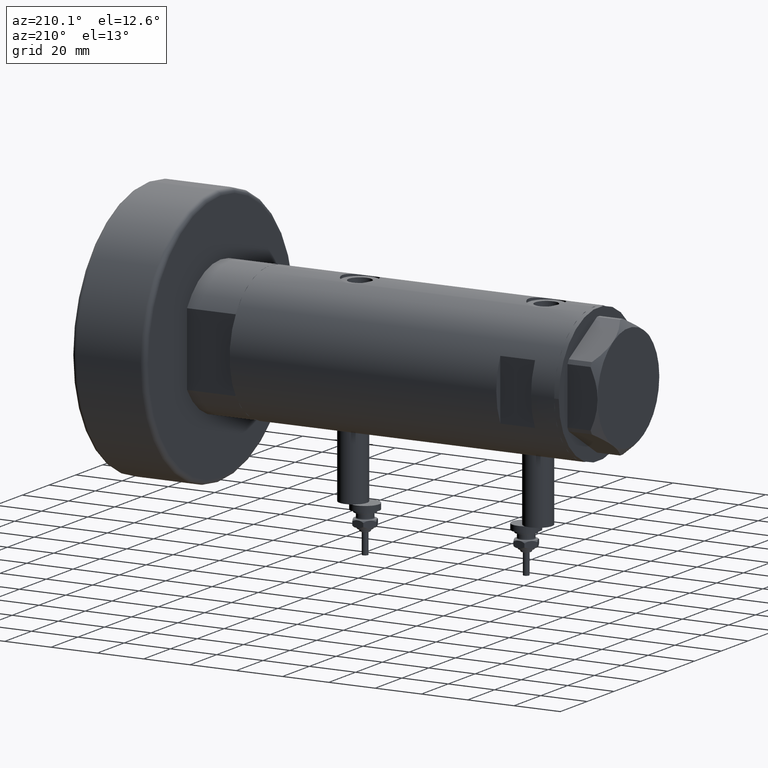
[diagram: clean part render]
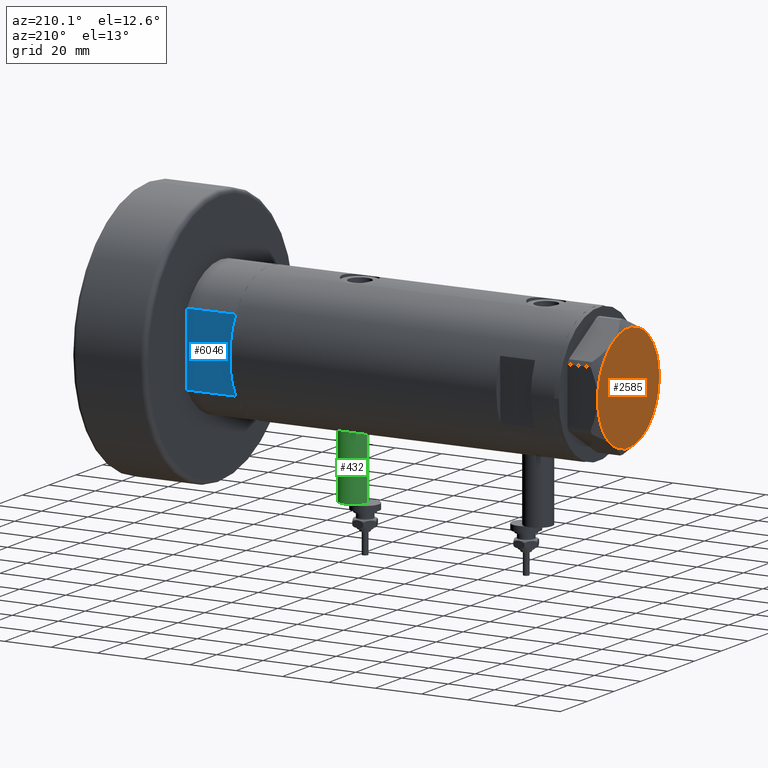
[diagram: same view with three faces highlighted in distinct colors, each labeled with its STEP entity id]
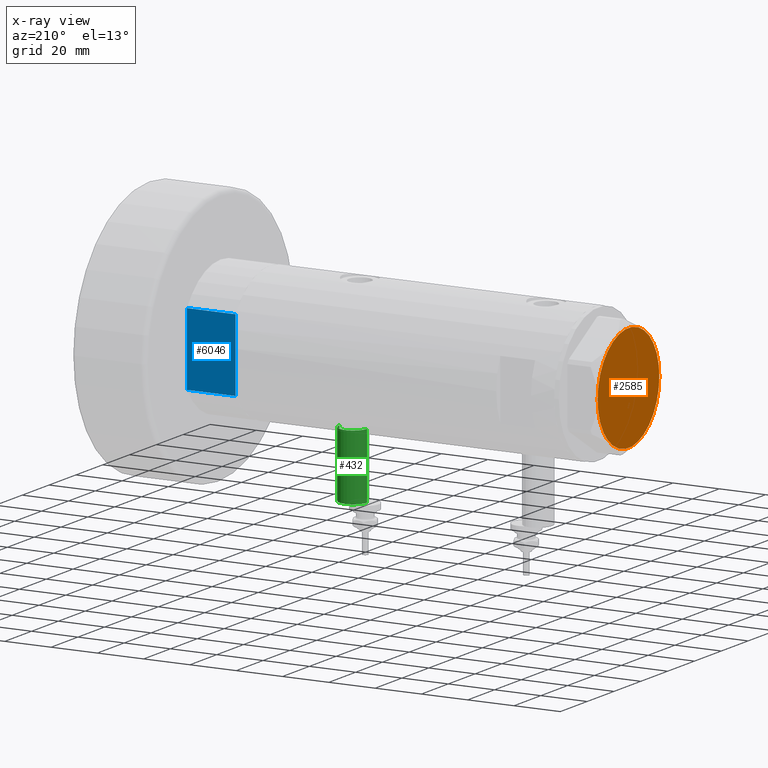
[diagram: x-ray of the same camera — body ghosted, the three highlighted faces saturated]
A machine part, auxiliary view with three faces highlighted in distinct colors.
The next image is the same camera in x-ray (body ghosted, the three faces saturated) — at least one of them is partly hidden behind the body in this view.
Their STEP definitions:

[orange] entity #2585 — the highlighted planar face has unit normal (-1, -0, 0).
#3 = DIRECTION ( 'NONE',  ( 0.000000000000000000, 0.000000000000000000, 1.000000000000000000 ) ) ;
#18 = AXIS2_PLACEMENT_3D ( 'NONE', #5641, #2256, #279 ) ;
#35 = CARTESIAN_POINT ( 'NONE',  ( 0.000000000000000000, 0.000000000000000000, 13.00000000000000000 ) ) ;
#48 = EDGE_CURVE ( 'NONE', #6001, #1273, #4721, .T. ) ;
#147 = AXIS2_PLACEMENT_3D ( 'NONE', #5677, #2261, #2772 ) ;
#279 = DIRECTION ( 'NONE',  ( 1.000000000000000000, 0.000000000000000000, 0.000000000000000000 ) ) ;
#515 = DIRECTION ( 'NONE',  ( 1.000000000000000000, 0.000000000000000000, 0.000000000000000000 ) ) ;
#547 = ORIENTED_EDGE ( 'NONE', *, *, #1640, .T. ) ;
#578 = AXIS2_PLACEMENT_3D ( 'NONE', #2924, #3, #4809 ) ;
#669 = DIRECTION ( 'NONE',  ( 1.000000000000000000, 0.000000000000000000, 0.000000000000000000 ) ) ;
#792 = CIRCLE ( 'NONE', #578, 23.00000000000004619 ) ;
#887 = CARTESIAN_POINT ( 'NONE',  ( 0.000000000000000000, 0.000000000000000000, 13.00000000000000000 ) ) ;
#1061 = CARTESIAN_POINT ( 'NONE',  ( 11.49999999999990408, 19.91858428704219364, 13.00000000000000000 ) ) ;
#1187 = AXIS2_PLACEMENT_3D ( 'NONE', #4033, #2589, #669 ) ;
#1273 = VERTEX_POINT ( 'NONE', #6051 ) ;
#1278 = CIRCLE ( 'NONE', #3926, 23.00000000000004619 ) ;
#1513 = VERTEX_POINT ( 'NONE', #3028 ) ;
#1555 = DIRECTION ( 'NONE',  ( 1.000000000000000000, 0.000000000000000000, -0.000000000000000000 ) ) ;
#1561 = VERTEX_POINT ( 'NONE', #1061 ) ;
#1640 = EDGE_CURVE ( 'NONE', #1273, #5021, #1278, .T. ) ;
#1706 = CIRCLE ( 'NONE', #6254, 23.00000000000004619 ) ;
#1718 = CARTESIAN_POINT ( 'NONE',  ( -11.50000000000004441, 19.91858428704211548, 13.00000000000000000 ) ) ;
#1890 = EDGE_CURVE ( 'NONE', #1513, #6001, #5950, .T. ) ;
#1960 = PLANE ( 'NONE',  #6242 ) ;
#2051 = CARTESIAN_POINT ( 'NONE',  ( 0.000000000000000000, 0.000000000000000000, 13.00000000000000000 ) ) ;
#2256 = DIRECTION ( 'NONE',  ( 0.000000000000000000, 0.000000000000000000, 1.000000000000000000 ) ) ;
#2261 = DIRECTION ( 'NONE',  ( 0.000000000000000000, 0.000000000000000000, 1.000000000000000000 ) ) ;
#2585 = ADVANCED_FACE ( 'NONE', ( #5871 ), #1960, .T. ) ;
#2589 = DIRECTION ( 'NONE',  ( 0.000000000000000000, 0.000000000000000000, 1.000000000000000000 ) ) ;
#2642 = EDGE_LOOP ( 'NONE', ( #547, #5862, #5607, #4249, #4905, #5364 ) ) ;
#2772 = DIRECTION ( 'NONE',  ( 1.000000000000000000, 0.000000000000000000, 0.000000000000000000 ) ) ;
#2924 = CARTESIAN_POINT ( 'NONE',  ( 0.000000000000000000, 0.000000000000000000, 13.00000000000000000 ) ) ;
#2948 = DIRECTION ( 'NONE',  ( 0.000000000000000000, 0.000000000000000000, 1.000000000000000000 ) ) ;
#3028 = CARTESIAN_POINT ( 'NONE',  ( -23.00000000000004619, -8.112498833180673323E-14, 13.00000000000000000 ) ) ;
#3039 = DIRECTION ( 'NONE',  ( 0.000000000000000000, 0.000000000000000000, 1.000000000000000000 ) ) ;
#3060 = EDGE_CURVE ( 'NONE', #3370, #1513, #5658, .T. ) ;
#3339 = DIRECTION ( 'NONE',  ( 0.000000000000000000, 0.000000000000000000, 1.000000000000000000 ) ) ;
#3370 = VERTEX_POINT ( 'NONE', #1718 ) ;
#3580 = CARTESIAN_POINT ( 'NONE',  ( -11.49999999999990585, -19.91858428704219364, 13.00000000000000000 ) ) ;
#3782 = DIRECTION ( 'NONE',  ( 1.000000000000000000, 0.000000000000000000, 0.000000000000000000 ) ) ;
#3926 = AXIS2_PLACEMENT_3D ( 'NONE', #887, #3339, #3782 ) ;
#4033 = CARTESIAN_POINT ( 'NONE',  ( 0.000000000000000000, 0.000000000000000000, 13.00000000000000000 ) ) ;
#4249 = ORIENTED_EDGE ( 'NONE', *, *, #3060, .T. ) ;
#4622 = EDGE_CURVE ( 'NONE', #1561, #3370, #1706, .T. ) ;
#4721 = CIRCLE ( 'NONE', #18, 23.00000000000004619 ) ;
#4809 = DIRECTION ( 'NONE',  ( 1.000000000000000000, 0.000000000000000000, 0.000000000000000000 ) ) ;
#4905 = ORIENTED_EDGE ( 'NONE', *, *, #1890, .T. ) ;
#5021 = VERTEX_POINT ( 'NONE', #5727 ) ;
#5364 = ORIENTED_EDGE ( 'NONE', *, *, #48, .T. ) ;
#5607 = ORIENTED_EDGE ( 'NONE', *, *, #4622, .T. ) ;
#5641 = CARTESIAN_POINT ( 'NONE',  ( 0.000000000000000000, 0.000000000000000000, 13.00000000000000000 ) ) ;
#5658 = CIRCLE ( 'NONE', #1187, 23.00000000000004619 ) ;
#5677 = CARTESIAN_POINT ( 'NONE',  ( 0.000000000000000000, 0.000000000000000000, 13.00000000000000000 ) ) ;
#5727 = CARTESIAN_POINT ( 'NONE',  ( 22.99999999999995026, 2.373657066004705010E-13, 13.00000000000000000 ) ) ;
#5862 = ORIENTED_EDGE ( 'NONE', *, *, #6045, .T. ) ;
#5871 = FACE_OUTER_BOUND ( 'NONE', #2642, .T. ) ;
#5950 = CIRCLE ( 'NONE', #147, 23.00000000000004619 ) ;
#6001 = VERTEX_POINT ( 'NONE', #3580 ) ;
#6045 = EDGE_CURVE ( 'NONE', #5021, #1561, #792, .T. ) ;
#6051 = CARTESIAN_POINT ( 'NONE',  ( 11.50000000000018296, -19.91858428704203732, 13.00000000000000000 ) ) ;
#6242 = AXIS2_PLACEMENT_3D ( 'NONE', #2051, #3039, #1555 ) ;
#6254 = AXIS2_PLACEMENT_3D ( 'NONE', #35, #2948, #515 ) ;

[blue] entity #6046 — the highlighted planar face has unit normal (0, -1, -0).
#250 = DIRECTION ( 'NONE',  ( 1.000000000000000000, 0.000000000000000000, 0.000000000000000000 ) ) ;
#604 = EDGE_CURVE ( 'NONE', #3961, #4569, #2138, .T. ) ;
#707 = VERTEX_POINT ( 'NONE', #6019 ) ;
#784 = CARTESIAN_POINT ( 'NONE',  ( 15.66045976336583401, 25.00000000000000000, 0.000000000000000000 ) ) ;
#843 = CARTESIAN_POINT ( 'NONE',  ( -15.66045976336583401, 25.00000000000000000, 0.000000000000000000 ) ) ;
#943 = DIRECTION ( 'NONE',  ( -0.000000000000000000, -0.000000000000000000, 1.000000000000000000 ) ) ;
#1147 = EDGE_CURVE ( 'NONE', #5835, #2940, #6109, .T. ) ;
#1151 = DIRECTION ( 'NONE',  ( 1.000000000000000000, 0.000000000000000000, 0.000000000000000000 ) ) ;
#1157 = CARTESIAN_POINT ( 'NONE',  ( -15.66045976336583401, 25.00000000000000000, 0.000000000000000000 ) ) ;
#1191 = EDGE_CURVE ( 'NONE', #4569, #707, #1492, .T. ) ;
#1217 = CARTESIAN_POINT ( 'NONE',  ( -15.66045976336583401, 25.00000000000000000, 0.000000000000000000 ) ) ;
#1433 = FACE_OUTER_BOUND ( 'NONE', #2156, .T. ) ;
#1492 = LINE ( 'NONE', #1157, #2993 ) ;
#1525 = ORIENTED_EDGE ( 'NONE', *, *, #604, .F. ) ;
#1668 = DIRECTION ( 'NONE',  ( 1.000000000000000000, 0.000000000000000000, 0.000000000000000000 ) ) ;
#1736 = LINE ( 'NONE', #1217, #4442 ) ;
#1789 = VECTOR ( 'NONE', #1151, 1000.000000000000000 ) ;
#2138 = LINE ( 'NONE', #3599, #3596 ) ;
#2156 = EDGE_LOOP ( 'NONE', ( #5426, #5600, #4805, #1525, #5981, #2951 ) ) ;
#2218 = LINE ( 'NONE', #784, #4557 ) ;
#2423 = DIRECTION ( 'NONE',  ( 1.000000000000000000, 0.000000000000000000, 0.000000000000000000 ) ) ;
#2668 = CARTESIAN_POINT ( 'NONE',  ( 7.141428428542853091, 25.00000000000000000, 0.000000000000000000 ) ) ;
#2940 = VERTEX_POINT ( 'NONE', #3174 ) ;
#2951 = ORIENTED_EDGE ( 'NONE', *, *, #4358, .T. ) ;
#2993 = VECTOR ( 'NONE', #2423, 1000.000000000000000 ) ;
#3174 = CARTESIAN_POINT ( 'NONE',  ( 15.66045976336583045, 24.99999999999999645, 20.99999999999999645 ) ) ;
#3185 = CARTESIAN_POINT ( 'NONE',  ( -15.66045976336583401, 25.00000000000000000, 21.00000000000000000 ) ) ;
#3344 = AXIS2_PLACEMENT_3D ( 'NONE', #3397, #3817, #3372 ) ;
#3372 = DIRECTION ( 'NONE',  ( 0.000000000000000000, -0.000000000000000000, -1.000000000000000000 ) ) ;
#3397 = CARTESIAN_POINT ( 'NONE',  ( -15.66045976336583401, 25.00000000000000000, 0.000000000000000000 ) ) ;
#3473 = EDGE_CURVE ( 'NONE', #4519, #3961, #5985, .T. ) ;
#3596 = VECTOR ( 'NONE', #1668, 1000.000000000000000 ) ;
#3599 = CARTESIAN_POINT ( 'NONE',  ( -15.66045976336583401, 25.00000000000000000, 0.000000000000000000 ) ) ;
#3817 = DIRECTION ( 'NONE',  ( 0.000000000000000000, -1.000000000000000000, 0.000000000000000000 ) ) ;
#3913 = PLANE ( 'NONE',  #3344 ) ;
#3961 = VERTEX_POINT ( 'NONE', #5826 ) ;
#4183 = DIRECTION ( 'NONE',  ( -0.000000000000000000, -0.000000000000000000, 1.000000000000000000 ) ) ;
#4358 = EDGE_CURVE ( 'NONE', #4519, #5835, #1736, .T. ) ;
#4442 = VECTOR ( 'NONE', #4183, 1000.000000000000000 ) ;
#4519 = VERTEX_POINT ( 'NONE', #843 ) ;
#4557 = VECTOR ( 'NONE', #943, 1000.000000000000000 ) ;
#4569 = VERTEX_POINT ( 'NONE', #2668 ) ;
#4586 = EDGE_CURVE ( 'NONE', #707, #2940, #2218, .T. ) ;
#4805 = ORIENTED_EDGE ( 'NONE', *, *, #1191, .F. ) ;
#4807 = CARTESIAN_POINT ( 'NONE',  ( -15.66045976336583045, 24.99999999999999645, 21.00000000000000355 ) ) ;
#5426 = ORIENTED_EDGE ( 'NONE', *, *, #1147, .T. ) ;
#5524 = CARTESIAN_POINT ( 'NONE',  ( -15.66045976336583401, 25.00000000000000000, 0.000000000000000000 ) ) ;
#5600 = ORIENTED_EDGE ( 'NONE', *, *, #4586, .F. ) ;
#5826 = CARTESIAN_POINT ( 'NONE',  ( -7.141428428542853091, 25.00000000000000000, 0.000000000000000000 ) ) ;
#5835 = VERTEX_POINT ( 'NONE', #4807 ) ;
#5941 = VECTOR ( 'NONE', #250, 1000.000000000000000 ) ;
#5981 = ORIENTED_EDGE ( 'NONE', *, *, #3473, .F. ) ;
#5985 = LINE ( 'NONE', #5524, #1789 ) ;
#6019 = CARTESIAN_POINT ( 'NONE',  ( 15.66045976336582690, 25.00000000000000000, 0.000000000000000000 ) ) ;
#6046 = ADVANCED_FACE ( 'NONE', ( #1433 ), #3913, .F. ) ;
#6109 = LINE ( 'NONE', #3185, #5941 ) ;

[green] entity #432 — the highlighted cylindrical surface (edge-blend (fillet) strip) has radius 6 mm, axis along (0, 0, 1).
#141 = DIRECTION ( 'NONE',  ( -1.000000000000000000, 0.000000000000000000, 0.000000000000000000 ) ) ;
#218 = VERTEX_POINT ( 'NONE', #1088 ) ;
#389 = CYLINDRICAL_SURFACE ( 'NONE', #742, 6.000000000000005329 ) ;
#432 = ADVANCED_FACE ( 'NONE', ( #2638 ), #389, .T. ) ;
#527 = EDGE_CURVE ( 'NONE', #3858, #218, #2491, .T. ) ;
#612 = ORIENTED_EDGE ( 'NONE', *, *, #1787, .F. ) ;
#659 = CIRCLE ( 'NONE', #1897, 6.000000000000001776 ) ;
#742 = AXIS2_PLACEMENT_3D ( 'NONE', #2341, #3384, #4348 ) ;
#1088 = CARTESIAN_POINT ( 'NONE',  ( -28.30000000000000071, 0.000000000000000000, -39.80000000000000426 ) ) ;
#1275 = ORIENTED_EDGE ( 'NONE', *, *, #2390, .T. ) ;
#1645 = VERTEX_POINT ( 'NONE', #5721 ) ;
#1787 = EDGE_CURVE ( 'NONE', #5892, #3858, #3407, .T. ) ;
#1897 = AXIS2_PLACEMENT_3D ( 'NONE', #4525, #141, #5976 ) ;
#1901 = DIRECTION ( 'NONE',  ( -1.000000000000000000, 0.000000000000000000, 0.000000000000000000 ) ) ;
#2003 = VECTOR ( 'NONE', #4580, 1000.000000000000000 ) ;
#2341 = CARTESIAN_POINT ( 'NONE',  ( -56.60000000000000142, 0.000000000000000000, -33.79999999999999716 ) ) ;
#2367 = CARTESIAN_POINT ( 'NONE',  ( -56.60000000000000142, 0.000000000000000000, -33.79999999999999716 ) ) ;
#2368 = CARTESIAN_POINT ( 'NONE',  ( -56.60000000000000142, 0.000000000000000000, -39.80000000000000426 ) ) ;
#2390 = EDGE_CURVE ( 'NONE', #1645, #218, #659, .T. ) ;
#2491 = LINE ( 'NONE', #2368, #4730 ) ;
#2622 = CARTESIAN_POINT ( 'NONE',  ( -56.60000000000000142, 7.347880794884122694E-16, -27.79999999999999361 ) ) ;
#2638 = FACE_OUTER_BOUND ( 'NONE', #5791, .T. ) ;
#2867 = ORIENTED_EDGE ( 'NONE', *, *, #527, .F. ) ;
#3061 = EDGE_CURVE ( 'NONE', #5892, #1645, #6020, .T. ) ;
#3384 = DIRECTION ( 'NONE',  ( 1.000000000000000000, -0.000000000000000000, -0.000000000000000000 ) ) ;
#3407 = CIRCLE ( 'NONE', #3504, 6.000000000000001776 ) ;
#3504 = AXIS2_PLACEMENT_3D ( 'NONE', #2367, #1901, #3840 ) ;
#3840 = DIRECTION ( 'NONE',  ( 0.000000000000000000, 0.000000000000000000, 1.000000000000000000 ) ) ;
#3858 = VERTEX_POINT ( 'NONE', #5668 ) ;
#4348 = DIRECTION ( 'NONE',  ( 0.000000000000000000, 0.000000000000000000, -1.000000000000000000 ) ) ;
#4445 = DIRECTION ( 'NONE',  ( 1.000000000000000000, -0.000000000000000000, -0.000000000000000000 ) ) ;
#4525 = CARTESIAN_POINT ( 'NONE',  ( -28.30000000000000071, 0.000000000000000000, -33.79999999999999716 ) ) ;
#4580 = DIRECTION ( 'NONE',  ( 1.000000000000000000, -0.000000000000000000, -0.000000000000000000 ) ) ;
#4589 = ORIENTED_EDGE ( 'NONE', *, *, #3061, .T. ) ;
#4730 = VECTOR ( 'NONE', #4445, 1000.000000000000000 ) ;
#5298 = CARTESIAN_POINT ( 'NONE',  ( -56.60000000000000142, 7.347880794884123680E-16, -27.79999999999999005 ) ) ;
#5668 = CARTESIAN_POINT ( 'NONE',  ( -56.60000000000000142, 0.000000000000000000, -39.80000000000000426 ) ) ;
#5721 = CARTESIAN_POINT ( 'NONE',  ( -28.30000000000000071, 7.347880794884123680E-16, -27.79999999999999005 ) ) ;
#5791 = EDGE_LOOP ( 'NONE', ( #612, #4589, #1275, #2867 ) ) ;
#5892 = VERTEX_POINT ( 'NONE', #5298 ) ;
#5976 = DIRECTION ( 'NONE',  ( 0.000000000000000000, 0.000000000000000000, 1.000000000000000000 ) ) ;
#6020 = LINE ( 'NONE', #2622, #2003 ) ;